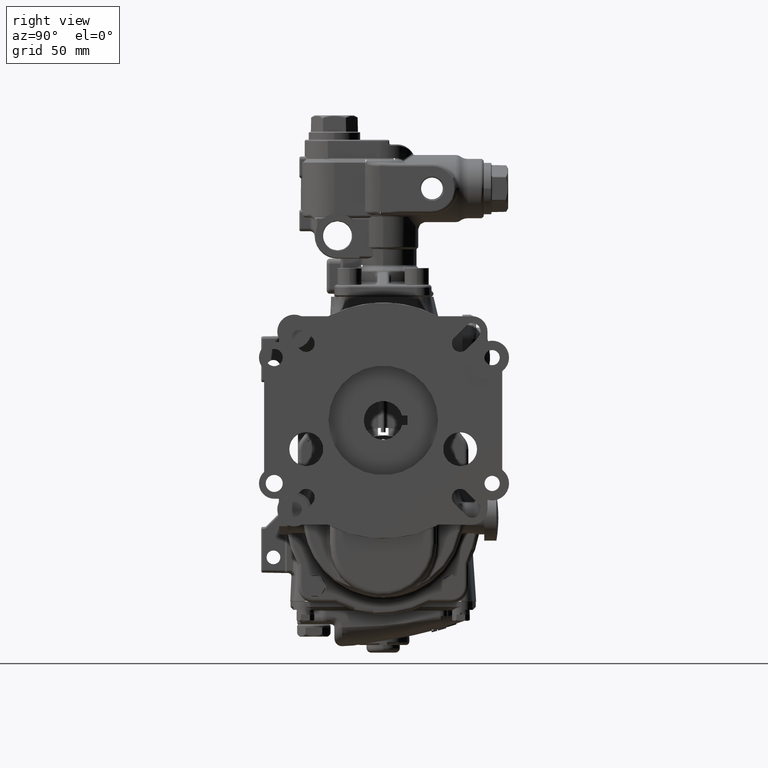
[diagram: clean part render]
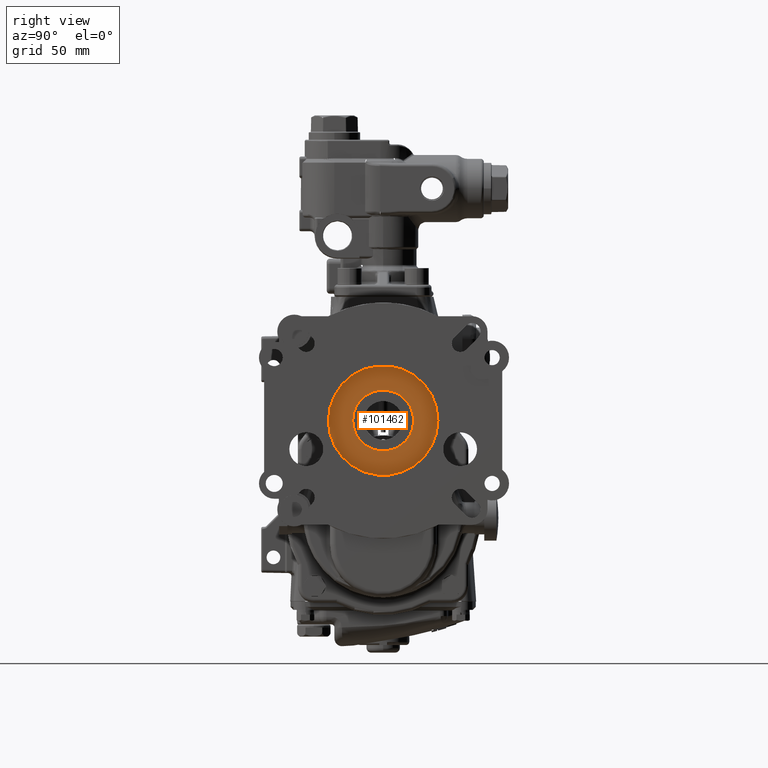
[diagram: same view with one face highlighted and labeled with its STEP entity id]
A machine part, right view. The second image highlights one B-rep face of the part: STEP entity #101462.
In plain terms, the highlighted planar face has unit normal (1, 0, -0).
Its self-contained STEP definition (entity closure, byte-faithful):
#2501 = EDGE_LOOP ( 'NONE', ( #104830, #101893 ) ) ;
#3203 = DIRECTION ( 'NONE',  ( 1.000000000000000000, 7.102626545835169598E-19, -4.324783731851683387E-18 ) ) ;
#5256 = AXIS2_PLACEMENT_3D ( 'NONE', #95284, #85966, #29072 ) ;
#6220 = DIRECTION ( 'NONE',  ( 7.102626545835171524E-19, -1.000000000000000000, -2.775557561562890735E-17 ) ) ;
#9593 = AXIS2_PLACEMENT_3D ( 'NONE', #118817, #34059, #6220 ) ;
#10701 = CIRCLE ( 'NONE', #40357, 0.7874015748031497619 ) ;
#13262 = DIRECTION ( 'NONE',  ( 0.000000000000000000, -1.000000000000000000, 0.000000000000000000 ) ) ;
#19120 = EDGE_CURVE ( 'NONE', #115054, #40284, #10701, .T. ) ;
#20184 = ORIENTED_EDGE ( 'NONE', *, *, #98586, .T. ) ;
#22530 = CARTESIAN_POINT ( 'NONE',  ( 6.500275590551182425, -5.629569733243070819E-15, 2.510999999999995680 ) ) ;
#23568 = PLANE ( 'NONE',  #9593 ) ;
#24611 = CIRCLE ( 'NONE', #34432, 1.415000000000000258 ) ;
#24802 = CARTESIAN_POINT ( 'NONE',  ( 6.500275590551182425, -0.7874015748031552020, 2.510999999999995680 ) ) ;
#27395 = EDGE_LOOP ( 'NONE', ( #20184, #61268 ) ) ;
#29053 = EDGE_CURVE ( 'NONE', #40284, #115054, #120736, .T. ) ;
#29072 = DIRECTION ( 'NONE',  ( 0.000000000000000000, -1.000000000000000000, 0.000000000000000000 ) ) ;
#31023 = DIRECTION ( 'NONE',  ( 0.000000000000000000, -1.000000000000000000, 0.000000000000000000 ) ) ;
#34059 = DIRECTION ( 'NONE',  ( 1.000000000000000000, 7.102626545835172487E-19, -4.324783731851683387E-18 ) ) ;
#34432 = AXIS2_PLACEMENT_3D ( 'NONE', #106552, #3203, #31023 ) ;
#38142 = CARTESIAN_POINT ( 'NONE',  ( 6.500275590551182425, 0.7874015748031440998, 2.510999999999995680 ) ) ;
#40284 = VERTEX_POINT ( 'NONE', #38142 ) ;
#40357 = AXIS2_PLACEMENT_3D ( 'NONE', #22530, #107938, #13262 ) ;
#48875 = CARTESIAN_POINT ( 'NONE',  ( 6.500275590551182425, 1.414999999999994262, 2.510999999999995680 ) ) ;
#58061 = DIRECTION ( 'NONE',  ( 1.000000000000000000, 7.102626545835169598E-19, -4.324783731851683387E-18 ) ) ;
#59538 = VERTEX_POINT ( 'NONE', #48875 ) ;
#60060 = FACE_OUTER_BOUND ( 'NONE', #27395, .T. ) ;
#61268 = ORIENTED_EDGE ( 'NONE', *, *, #80028, .T. ) ;
#80028 = EDGE_CURVE ( 'NONE', #59538, #115479, #24611, .T. ) ;
#85966 = DIRECTION ( 'NONE',  ( 1.000000000000000000, 7.102626545835169598E-19, -4.324783731851683387E-18 ) ) ;
#88525 = FACE_BOUND ( 'NONE', #2501, .T. ) ;
#95284 = CARTESIAN_POINT ( 'NONE',  ( 6.500275590551182425, -5.629569733243070819E-15, 2.510999999999995680 ) ) ;
#98586 = EDGE_CURVE ( 'NONE', #115479, #59538, #117838, .T. ) ;
#101462 = ADVANCED_FACE ( 'NONE', ( #60060, #88525 ), #23568, .T. ) ;
#101893 = ORIENTED_EDGE ( 'NONE', *, *, #19120, .F. ) ;
#104830 = ORIENTED_EDGE ( 'NONE', *, *, #29053, .F. ) ;
#106552 = CARTESIAN_POINT ( 'NONE',  ( 6.500275590551182425, -5.629569733243070819E-15, 2.510999999999995680 ) ) ;
#107938 = DIRECTION ( 'NONE',  ( 1.000000000000000000, 7.102626545835169598E-19, -4.324783731851683387E-18 ) ) ;
#108934 = AXIS2_PLACEMENT_3D ( 'NONE', #122423, #58061, #113786 ) ;
#113786 = DIRECTION ( 'NONE',  ( 0.000000000000000000, -1.000000000000000000, 0.000000000000000000 ) ) ;
#115054 = VERTEX_POINT ( 'NONE', #24802 ) ;
#115479 = VERTEX_POINT ( 'NONE', #116887 ) ;
#116887 = CARTESIAN_POINT ( 'NONE',  ( 6.500275590551182425, -1.415000000000006031, 2.510999999999995680 ) ) ;
#117838 = CIRCLE ( 'NONE', #5256, 1.415000000000000258 ) ;
#118817 = CARTESIAN_POINT ( 'NONE',  ( 6.500275590551182425, -5.629569733243070819E-15, 2.510999999999995680 ) ) ;
#120736 = CIRCLE ( 'NONE', #108934, 0.7874015748031497619 ) ;
#122423 = CARTESIAN_POINT ( 'NONE',  ( 6.500275590551182425, -5.629569733243070819E-15, 2.510999999999995680 ) ) ;